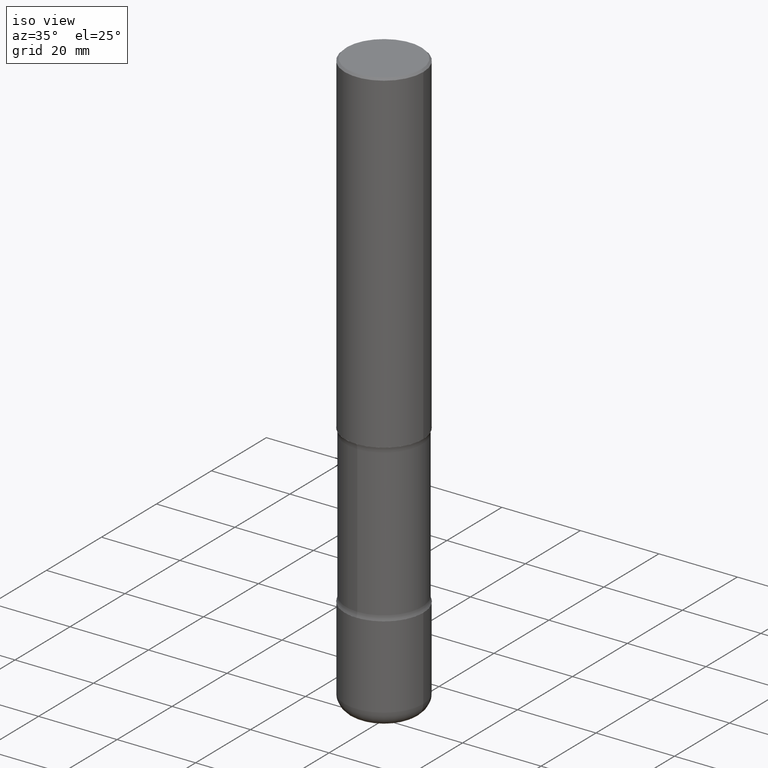
[diagram: clean part render]
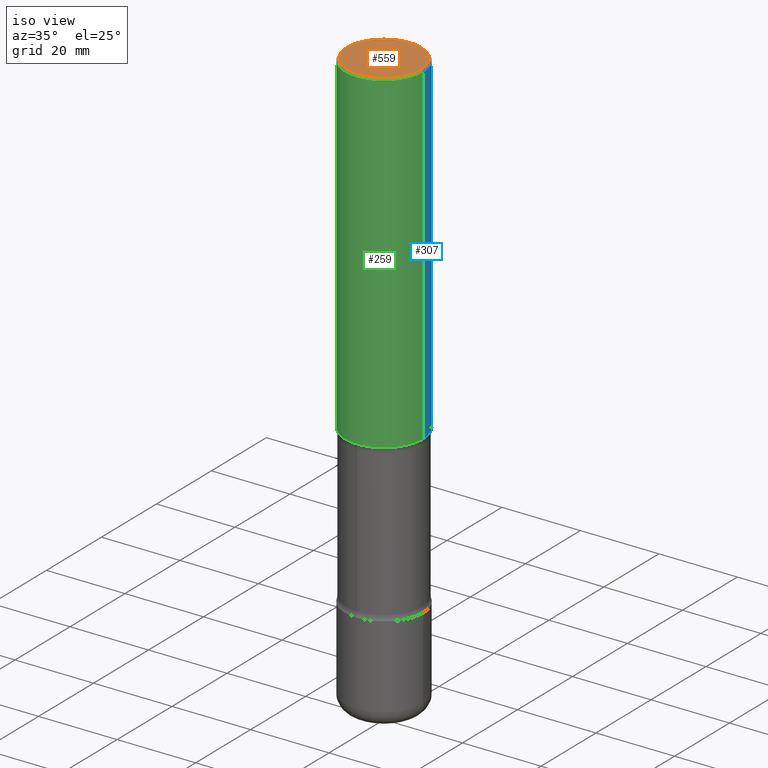
[diagram: same view with three faces highlighted in distinct colors, each labeled with its STEP entity id]
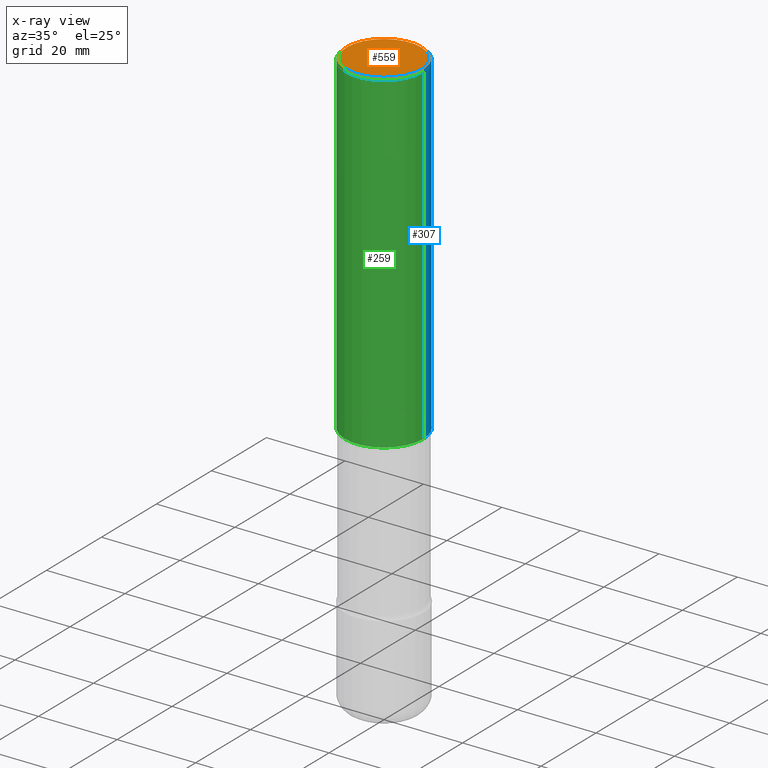
[diagram: x-ray of the same camera — body ghosted, the three highlighted faces saturated]
A machine part, iso view with three faces highlighted in distinct colors.
The next image is the same camera in x-ray (body ghosted, the three faces saturated) — at least one of them is partly hidden behind the body in this view.
Their STEP definitions:

[orange] entity #559 — the highlighted planar face has unit normal (0, -0, -1).
#11 = AXIS2_PLACEMENT_3D ( 'NONE', #432, #268, #402 ) ;
#22 = VERTEX_POINT ( 'NONE', #163 ) ;
#38 = DIRECTION ( 'NONE',  ( -2.445468806185136597E-29, 3.491481338843145583E-15, 1.000000000000000000 ) ) ;
#53 = EDGE_LOOP ( 'NONE', ( #348, #318 ) ) ;
#96 = DIRECTION ( 'NONE',  ( -1.000000000000000000, 6.982962677686265922E-15, -4.876176775795935793E-29 ) ) ;
#139 = EDGE_CURVE ( 'NONE', #414, #22, #282, .T. ) ;
#154 = CIRCLE ( 'NONE', #228, 0.3736999999999998101 ) ;
#163 = CARTESIAN_POINT ( 'NONE',  ( 0.3736999999999998101, -2.667287895133366781E-15, 8.537024980219274507E-18 ) ) ;
#228 = AXIS2_PLACEMENT_3D ( 'NONE', #233, #38, #232 ) ;
#232 = DIRECTION ( 'NONE',  ( 1.000000000000000000, -6.982962677686266711E-15, 4.876212485538977921E-29 ) ) ;
#233 = CARTESIAN_POINT ( 'NONE',  ( -2.087702828670439639E-46, 2.980686340760894400E-32, 8.537024980200822558E-18 ) ) ;
#268 = DIRECTION ( 'NONE',  ( -2.445468806185136597E-29, 3.491481338843145583E-15, 1.000000000000000000 ) ) ;
#282 = CIRCLE ( 'NONE', #11, 0.3736999999999998101 ) ;
#311 = FACE_OUTER_BOUND ( 'NONE', #53, .T. ) ;
#318 = ORIENTED_EDGE ( 'NONE', *, *, #338, .T. ) ;
#338 = EDGE_CURVE ( 'NONE', #22, #414, #154, .T. ) ;
#348 = ORIENTED_EDGE ( 'NONE', *, *, #139, .T. ) ;
#402 = DIRECTION ( 'NONE',  ( 1.000000000000000000, -6.982962677686266711E-15, 4.876212485538977921E-29 ) ) ;
#414 = VERTEX_POINT ( 'NONE', #497 ) ;
#432 = CARTESIAN_POINT ( 'NONE',  ( -2.087702828670439639E-46, 2.980686340760894400E-32, 8.537024980200822558E-18 ) ) ;
#447 = CARTESIAN_POINT ( 'NONE',  ( 2.609533152651356226E-15, 0.3736999999999998101, -1.300498063835582617E-15 ) ) ;
#463 = AXIS2_PLACEMENT_3D ( 'NONE', #447, #544, #96 ) ;
#490 = PLANE ( 'NONE',  #463 ) ;
#497 = CARTESIAN_POINT ( 'NONE',  ( -0.3736999999999998101, 2.644447966039787875E-15, 8.537024980182450727E-18 ) ) ;
#544 = DIRECTION ( 'NONE',  ( 2.438088387897960049E-29, -3.491481338843145188E-15, -1.000000000000000000 ) ) ;
#559 = ADVANCED_FACE ( 'NONE', ( #311 ), #490, .F. ) ;

[blue] entity #307 — the highlighted cylindrical surface (partial cylindrical patch) has radius 10 mm, axis along (-0, 0, 1).
#13 = CIRCLE ( 'NONE', #59, 0.3937000000000002164 ) ;
#25 = DIRECTION ( 'NONE',  ( 1.000000000000000000, -6.982962677686265922E-15, 4.876176775795935793E-29 ) ) ;
#30 = ORIENTED_EDGE ( 'NONE', *, *, #431, .T. ) ;
#59 = AXIS2_PLACEMENT_3D ( 'NONE', #495, #137, #319 ) ;
#62 = CARTESIAN_POINT ( 'NONE',  ( 0.000000000000000000, 0.000000000000000000, 0.000000000000000000 ) ) ;
#126 = DIRECTION ( 'NONE',  ( -2.445468806185136597E-29, 3.491481338843145583E-15, 1.000000000000000000 ) ) ;
#137 = DIRECTION ( 'NONE',  ( -2.445468806185136597E-29, 3.491481338843145583E-15, 1.000000000000000000 ) ) ;
#166 = VECTOR ( 'NONE', #389, 39.37007874015748143 ) ;
#190 = CARTESIAN_POINT ( 'NONE',  ( -0.3936999999999998279, 2.679362779428218735E-15, -0.02000000000000008715 ) ) ;
#191 = CARTESIAN_POINT ( 'NONE',  ( -0.3937000000000002164, -3.079454638853261231E-15, -3.346399999999997821 ) ) ;
#194 = VECTOR ( 'NONE', #353, 39.37007874015748143 ) ;
#231 = EDGE_CURVE ( 'NONE', #369, #403, #347, .T. ) ;
#272 = EDGE_CURVE ( 'NONE', #403, #449, #473, .T. ) ;
#307 = ADVANCED_FACE ( 'NONE', ( #557 ), #553, .T. ) ;
#319 = DIRECTION ( 'NONE',  ( 1.000000000000000000, -6.982962677686265133E-15, 0.000000000000000000 ) ) ;
#335 = AXIS2_PLACEMENT_3D ( 'NONE', #62, #535, #25 ) ;
#345 = VERTEX_POINT ( 'NONE', #191 ) ;
#347 = LINE ( 'NONE', #533, #194 ) ;
#353 = DIRECTION ( 'NONE',  ( -2.445468806185136877E-29, 3.491481338843145188E-15, 1.000000000000000000 ) ) ;
#369 = VERTEX_POINT ( 'NONE', #446 ) ;
#386 = AXIS2_PLACEMENT_3D ( 'NONE', #522, #126, #482 ) ;
#389 = DIRECTION ( 'NONE',  ( -2.445468806185136877E-29, 3.491481338843145188E-15, 1.000000000000000000 ) ) ;
#403 = VERTEX_POINT ( 'NONE', #493 ) ;
#417 = ORIENTED_EDGE ( 'NONE', *, *, #272, .F. ) ;
#431 = EDGE_CURVE ( 'NONE', #345, #449, #451, .T. ) ;
#446 = CARTESIAN_POINT ( 'NONE',  ( 0.3937000000000002164, -1.443308555850977984E-14, -3.346399999999997821 ) ) ;
#449 = VERTEX_POINT ( 'NONE', #190 ) ;
#451 = LINE ( 'NONE', #476, #166 ) ;
#473 = CIRCLE ( 'NONE', #386, 0.3936999999999998279 ) ;
#476 = CARTESIAN_POINT ( 'NONE',  ( -0.3937000000000000499, 2.797406750687514786E-15, -1.936584745033356735E-29 ) ) ;
#479 = ORIENTED_EDGE ( 'NONE', *, *, #231, .F. ) ;
#482 = DIRECTION ( 'NONE',  ( 1.000000000000000000, -6.982962677686266711E-15, 0.000000000000000000 ) ) ;
#486 = EDGE_LOOP ( 'NONE', ( #542, #30, #417, #479 ) ) ;
#493 = CARTESIAN_POINT ( 'NONE',  ( 0.3936999999999998279, -2.770807688499514156E-15, -0.02000000000000008715 ) ) ;
#495 = CARTESIAN_POINT ( 'NONE',  ( 8.183516813017936514E-29, -1.168389315230469505E-14, -3.346399999999997821 ) ) ;
#522 = CARTESIAN_POINT ( 'NONE',  ( 4.890937612370294178E-31, -6.982962677686321191E-17, -0.02000000000000008715 ) ) ;
#533 = CARTESIAN_POINT ( 'NONE',  ( 0.3937000000000000499, -2.749192406205083217E-15, 1.919750796630860172E-29 ) ) ;
#535 = DIRECTION ( 'NONE',  ( -2.445468806185136597E-29, 3.491481338843145583E-15, 1.000000000000000000 ) ) ;
#536 = EDGE_CURVE ( 'NONE', #369, #345, #13, .T. ) ;
#542 = ORIENTED_EDGE ( 'NONE', *, *, #536, .T. ) ;
#553 = CYLINDRICAL_SURFACE ( 'NONE', #335, 0.3937000000000000499 ) ;
#557 = FACE_OUTER_BOUND ( 'NONE', #486, .T. ) ;

[green] entity #259 — the highlighted cylindrical surface (partial cylindrical patch) has radius 10 mm, axis along (-0, 0, 1).
#6 = ORIENTED_EDGE ( 'NONE', *, *, #231, .T. ) ;
#15 = DIRECTION ( 'NONE',  ( 1.000000000000000000, -6.982962677686265133E-15, 0.000000000000000000 ) ) ;
#48 = CIRCLE ( 'NONE', #492, 0.3936999999999998279 ) ;
#87 = AXIS2_PLACEMENT_3D ( 'NONE', #530, #90, #260 ) ;
#90 = DIRECTION ( 'NONE',  ( -2.445468806185136597E-29, 3.491481338843145583E-15, 1.000000000000000000 ) ) ;
#129 = FACE_OUTER_BOUND ( 'NONE', #313, .T. ) ;
#140 = DIRECTION ( 'NONE',  ( -2.445468806185136597E-29, 3.491481338843145583E-15, 1.000000000000000000 ) ) ;
#155 = ORIENTED_EDGE ( 'NONE', *, *, #431, .F. ) ;
#166 = VECTOR ( 'NONE', #389, 39.37007874015748143 ) ;
#190 = CARTESIAN_POINT ( 'NONE',  ( -0.3936999999999998279, 2.679362779428218735E-15, -0.02000000000000008715 ) ) ;
#191 = CARTESIAN_POINT ( 'NONE',  ( -0.3937000000000002164, -3.079454638853261231E-15, -3.346399999999997821 ) ) ;
#194 = VECTOR ( 'NONE', #353, 39.37007874015748143 ) ;
#196 = CIRCLE ( 'NONE', #316, 0.3937000000000002164 ) ;
#231 = EDGE_CURVE ( 'NONE', #369, #403, #347, .T. ) ;
#238 = DIRECTION ( 'NONE',  ( -2.445468806185136597E-29, 3.491481338843145583E-15, 1.000000000000000000 ) ) ;
#259 = ADVANCED_FACE ( 'NONE', ( #129 ), #312, .T. ) ;
#260 = DIRECTION ( 'NONE',  ( 1.000000000000000000, -6.982962677686265922E-15, 4.876176775795935793E-29 ) ) ;
#302 = EDGE_CURVE ( 'NONE', #449, #403, #48, .T. ) ;
#312 = CYLINDRICAL_SURFACE ( 'NONE', #87, 0.3937000000000000499 ) ;
#313 = EDGE_LOOP ( 'NONE', ( #155, #531, #6, #538 ) ) ;
#316 = AXIS2_PLACEMENT_3D ( 'NONE', #322, #140, #15 ) ;
#322 = CARTESIAN_POINT ( 'NONE',  ( 8.183516813017936514E-29, -1.168389315230469505E-14, -3.346399999999997821 ) ) ;
#345 = VERTEX_POINT ( 'NONE', #191 ) ;
#347 = LINE ( 'NONE', #533, #194 ) ;
#353 = DIRECTION ( 'NONE',  ( -2.445468806185136877E-29, 3.491481338843145188E-15, 1.000000000000000000 ) ) ;
#369 = VERTEX_POINT ( 'NONE', #446 ) ;
#380 = DIRECTION ( 'NONE',  ( 1.000000000000000000, -6.982962677686266711E-15, 0.000000000000000000 ) ) ;
#389 = DIRECTION ( 'NONE',  ( -2.445468806185136877E-29, 3.491481338843145188E-15, 1.000000000000000000 ) ) ;
#403 = VERTEX_POINT ( 'NONE', #493 ) ;
#431 = EDGE_CURVE ( 'NONE', #345, #449, #451, .T. ) ;
#446 = CARTESIAN_POINT ( 'NONE',  ( 0.3937000000000002164, -1.443308555850977984E-14, -3.346399999999997821 ) ) ;
#449 = VERTEX_POINT ( 'NONE', #190 ) ;
#451 = LINE ( 'NONE', #476, #166 ) ;
#474 = EDGE_CURVE ( 'NONE', #345, #369, #196, .T. ) ;
#476 = CARTESIAN_POINT ( 'NONE',  ( -0.3937000000000000499, 2.797406750687514786E-15, -1.936584745033356735E-29 ) ) ;
#492 = AXIS2_PLACEMENT_3D ( 'NONE', #511, #238, #380 ) ;
#493 = CARTESIAN_POINT ( 'NONE',  ( 0.3936999999999998279, -2.770807688499514156E-15, -0.02000000000000008715 ) ) ;
#511 = CARTESIAN_POINT ( 'NONE',  ( 4.890937612370294178E-31, -6.982962677686321191E-17, -0.02000000000000008715 ) ) ;
#530 = CARTESIAN_POINT ( 'NONE',  ( 0.000000000000000000, 0.000000000000000000, 0.000000000000000000 ) ) ;
#531 = ORIENTED_EDGE ( 'NONE', *, *, #474, .T. ) ;
#533 = CARTESIAN_POINT ( 'NONE',  ( 0.3937000000000000499, -2.749192406205083217E-15, 1.919750796630860172E-29 ) ) ;
#538 = ORIENTED_EDGE ( 'NONE', *, *, #302, .F. ) ;